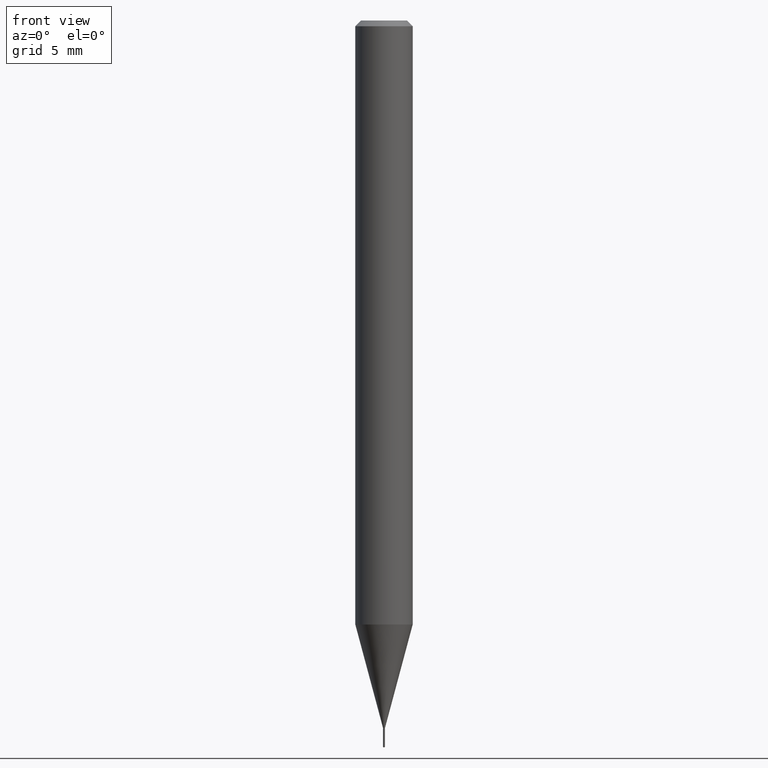
[diagram: clean part render]
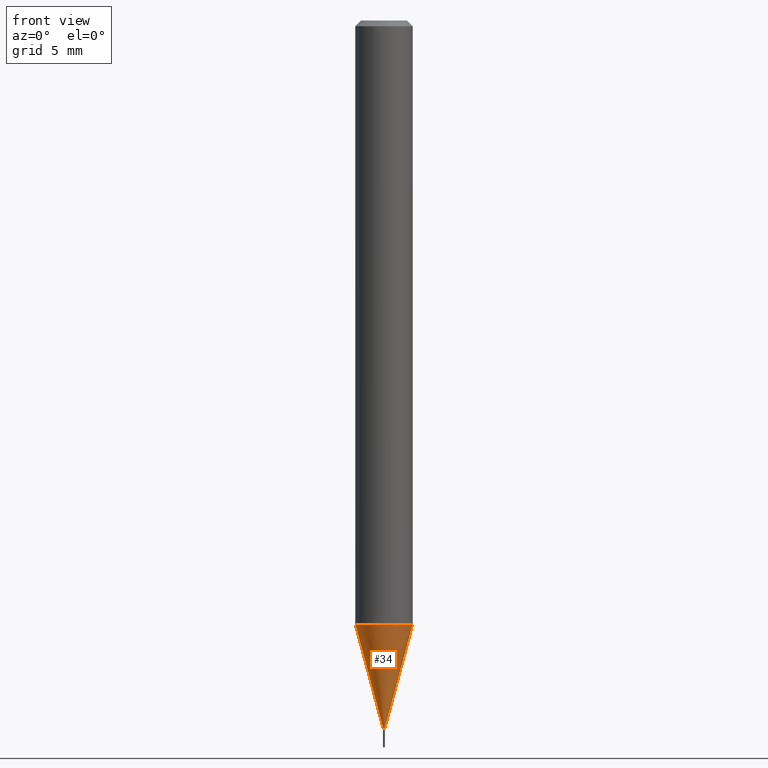
[diagram: same view with one face highlighted and labeled with its STEP entity id]
A machine part, front view. The second image highlights one B-rep face of the part: STEP entity #34.
In plain terms, the highlighted conical surface has half-angle 15 deg.
Its self-contained STEP definition (entity closure, byte-faithful):
#6 = AXIS2_PLACEMENT_3D ( 'NONE', #174, #472, #475 ) ;
#16 = CARTESIAN_POINT ( 'NONE',  ( 0.05905000000000017180, -4.752254897268105035E-15, -1.242999898887816812 ) ) ;
#25 = CARTESIAN_POINT ( 'NONE',  ( 3.560847128686176768E-29, -5.083945977489503852E-15, -1.456099999999999728 ) ) ;
#34 = ADVANCED_FACE ( 'NONE', ( #256 ), #327, .T. ) ;
#36 = VECTOR ( 'NONE', #86, 39.37007874015748143 ) ;
#57 = ORIENTED_EDGE ( 'NONE', *, *, #241, .F. ) ;
#61 = CIRCLE ( 'NONE', #101, 0.05905000000000017180 ) ;
#63 = VERTEX_POINT ( 'NONE', #102 ) ;
#64 = EDGE_CURVE ( 'NONE', #142, #273, #61, .T. ) ;
#84 = CIRCLE ( 'NONE', #6, 0.001949999999999999910 ) ;
#86 = DIRECTION ( 'NONE',  ( -0.2588190451025214611, 5.211531920934550253E-15, 0.9659258262890679791 ) ) ;
#101 = AXIS2_PLACEMENT_3D ( 'NONE', #255, #337, #403 ) ;
#102 = CARTESIAN_POINT ( 'NONE',  ( 0.001949999999999999910, -5.097562754710991580E-15, -1.456099999999999728 ) ) ;
#121 = LINE ( 'NONE', #281, #36 ) ;
#142 = VERTEX_POINT ( 'NONE', #458 ) ;
#150 = CARTESIAN_POINT ( 'NONE',  ( 0.001949999999999999910, -5.097562754710991580E-15, -1.456099999999999728 ) ) ;
#155 = CARTESIAN_POINT ( 'NONE',  ( -0.001949999999999999910, -5.070264968209125181E-15, -1.456099999999999728 ) ) ;
#174 = CARTESIAN_POINT ( 'NONE',  ( 3.560847128686176768E-29, -5.083945977489503852E-15, -1.456099999999999728 ) ) ;
#218 = VECTOR ( 'NONE', #306, 39.37007874015748143 ) ;
#221 = DIRECTION ( 'NONE',  ( 1.000000000000000000, -6.982962677686159425E-15, 0.000000000000000000 ) ) ;
#238 = ORIENTED_EDGE ( 'NONE', *, *, #345, .T. ) ;
#241 = EDGE_CURVE ( 'NONE', #455, #142, #121, .T. ) ;
#243 = AXIS2_PLACEMENT_3D ( 'NONE', #25, #409, #221 ) ;
#255 = CARTESIAN_POINT ( 'NONE',  ( 3.039717478821434878E-29, -4.339910951150729326E-15, -1.242999898887816812 ) ) ;
#256 = FACE_OUTER_BOUND ( 'NONE', #414, .T. ) ;
#263 = LINE ( 'NONE', #150, #218 ) ;
#273 = VERTEX_POINT ( 'NONE', #16 ) ;
#281 = CARTESIAN_POINT ( 'NONE',  ( -0.001949999999999999910, -5.070090394142181847E-15, -1.456099999999999728 ) ) ;
#306 = DIRECTION ( 'NONE',  ( 0.2588190451025214611, 1.565188264969620982E-15, 0.9659258262890679791 ) ) ;
#327 = CONICAL_SURFACE ( 'NONE', #243, 0.001949999999999999910, 0.2617993877991501850 ) ;
#337 = DIRECTION ( 'NONE',  ( -2.445468806185136597E-29, 3.491481338843145583E-15, 1.000000000000000000 ) ) ;
#345 = EDGE_CURVE ( 'NONE', #455, #63, #84, .T. ) ;
#366 = ORIENTED_EDGE ( 'NONE', *, *, #64, .F. ) ;
#403 = DIRECTION ( 'NONE',  ( 1.000000000000000000, -6.982962677686260400E-15, 0.000000000000000000 ) ) ;
#409 = DIRECTION ( 'NONE',  ( -2.445468806185136597E-29, 3.491481338843145583E-15, 1.000000000000000000 ) ) ;
#414 = EDGE_LOOP ( 'NONE', ( #57, #238, #428, #366 ) ) ;
#428 = ORIENTED_EDGE ( 'NONE', *, *, #446, .T. ) ;
#446 = EDGE_CURVE ( 'NONE', #63, #273, #263, .T. ) ;
#455 = VERTEX_POINT ( 'NONE', #155 ) ;
#458 = CARTESIAN_POINT ( 'NONE',  ( -0.05905000000000017180, -3.920335465684389833E-15, -1.242999898887816812 ) ) ;
#472 = DIRECTION ( 'NONE',  ( -2.445468806185136597E-29, 3.491481338843145583E-15, 1.000000000000000000 ) ) ;
#475 = DIRECTION ( 'NONE',  ( 1.000000000000000000, -6.982962677686159425E-15, 0.000000000000000000 ) ) ;